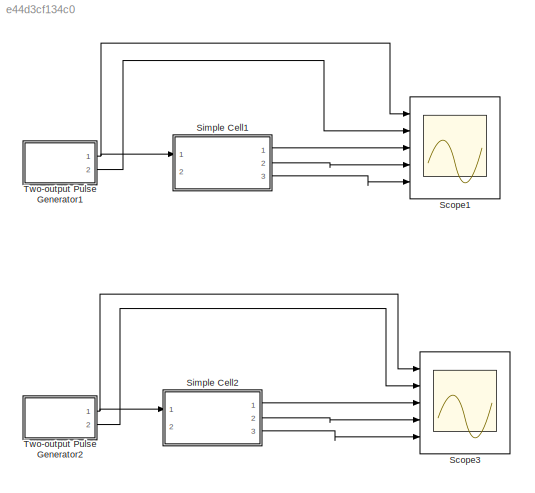
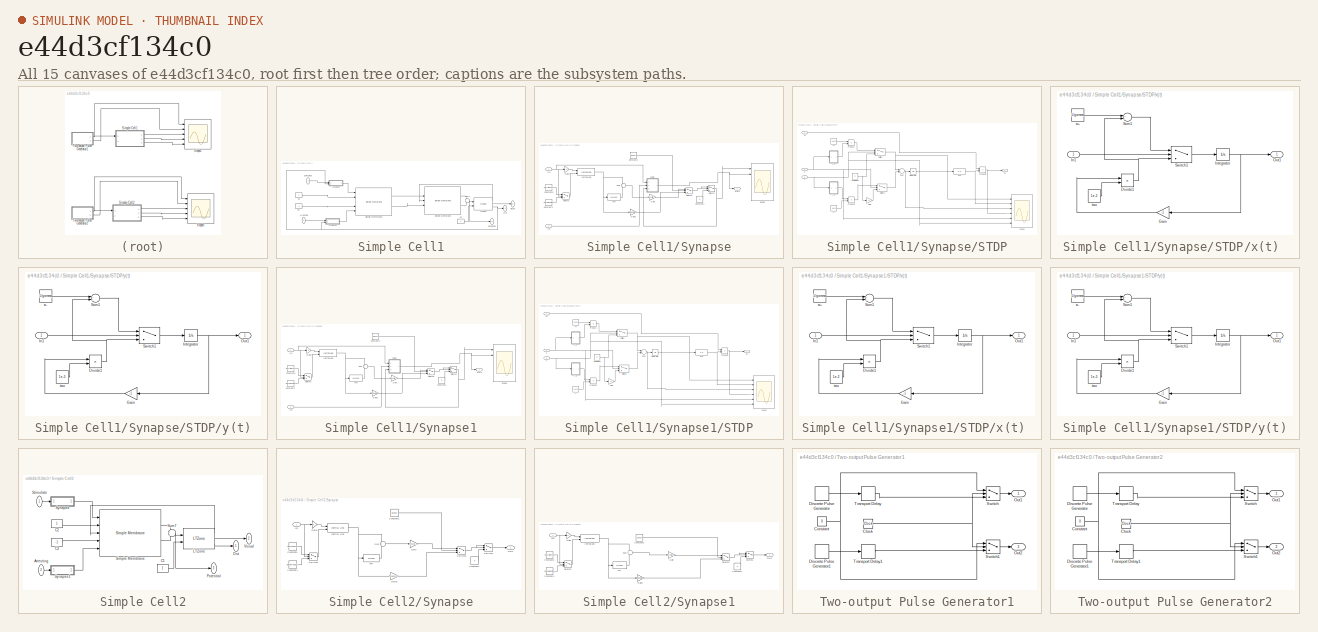
[diagram: thumbnail index - all 15 canvases of the model, root first then tree order]
MODEL slx_e44d3cf134c0
KIND model
CONFIG AbsTol = auto
CONFIG EnableMultiTasking = on
CONFIG FixedStep = auto
CONFIG MaxStep = auto
CONFIG MinStep = auto
CONFIG RelTol = 1e-3
CONFIG SampleTimeConstraint = Unconstrained
CONFIG Solver = ode45
CONFIG SolverName = ode45
CONFIG StartTime = 0.0
CONFIG StopTime = 5
BLOCK [Scope] Scope1
  NumInputPorts = 5
  Ports = [5]
  ScopeSpecificationString = Simulink.scopes.TimeScopeBlockCfg('CurrentConfiguration', extmgr.ConfigurationSet(extmgr.Configuration('Core','General UI',true),extmgr.Configuration('Core','Source UI',true),extmgr.Configuration('Sources','WiredSimulink',true,'DataLoggingVariableName','ScopeData1','DataLoggingSaveFormat','StructureWithTime','DataLoggingMaxPoints','50000','DataLoggingLimitDataPoints',true,'DataLoggingDecimation','...<+4527ch>
BLOCK [Scope] Scope3
  NumInputPorts = 5
  Ports = [5]
  ScopeSpecificationString = Simulink.scopes.TimeScopeBlockCfg('CurrentConfiguration', extmgr.ConfigurationSet(extmgr.Configuration('Core','General UI',true),extmgr.Configuration('Core','Source UI',true),extmgr.Configuration('Sources','WiredSimulink',true,'DataLoggingVariableName','ScopeData2','DataLoggingSaveFormat','StructureWithTime','DataLoggingMaxPoints','50000','DataLoggingLimitDataPoints',true,'DataLoggingDecimation','...<+4550ch>
BLOCK [SubSystem] Simple Cell1
  AncestorBlock = NeuroModelerLibrary/Simple Cells/Simple Cell
  Ports = [2, 3]
  RequestExecContextInheritance = off
  Variant = off
BLOCK [Inport] Simple Cell1/Arresting
  IconDisplay = Port number
  Port = 2
BLOCK [Constant] Simple Cell1/C1
BLOCK [Constant] Simple Cell1/C2
BLOCK [Constant] Simple Cell1/C3
  Value = -1
BLOCK [Reference] Simple Cell1/LTZone  REF=NeuroModelerLibrary/Neuron Elements/LTZone
  Ports = [2, 3]
  SourceBlock = NeuroModelerLibrary/Neuron Elements/LTZone
  SourceType = Ion pump
BLOCK [Outport] Simple Cell1/Out
  IconDisplay = Port number
BLOCK [Outport] Simple Cell1/Potential
  IconDisplay = Port number
  Port = 3
BLOCK [Reference] Simple Cell1/Simple Membrane  REF=NeuroModelerLibrary/Neuron Elements/Simple Membrane
  Ports = [5, 2]
  SourceBlock = NeuroModelerLibrary/Neuron Elements/Simple Membrane
BLOCK [Reference] Simple Cell1/Simple Membrane1  REF=NeuroModelerLibrary/Neuron Elements/Simple Membrane
  Ports = [5, 2]
  SourceBlock = NeuroModelerLibrary/Neuron Elements/Simple Membrane
BLOCK [Inport] Simple Cell1/Stimulate
  IconDisplay = Port number
BLOCK [Sum] Simple Cell1/Sum7
  IconShape = round
  Ports = [2, 1]
BLOCK [SubSystem] Simple Cell1/Synapse
  AncestorBlock = NeuroModelerLibrary/Neuron Elements/Synapse
  Ports = [2, 1]
  RequestExecContextInheritance = off
  Variant = off
BLOCK [Constant] Simple Cell1/Synapse/Constant1
  Value = 0
BLOCK [Constant] Simple Cell1/Synapse/Constant2
  Value = UseKsi
BLOCK [Constant] Simple Cell1/Synapse/Constant4
  Value = DecompositionTC
BLOCK [Constant] Simple Cell1/Synapse/Constant5
  Value = SecretionTC
BLOCK [Fcn] Simple Cell1/Synapse/Fcn
  Expr = u*u*ksi
BLOCK [Gain] Simple Cell1/Synapse/Gain
  Gain = 4*ksi/gamma
BLOCK [Gain] Simple Cell1/Synapse/Gain1
BLOCK [Gain] Simple Cell1/Synapse/Gain2
  Gain = 1/gamma
BLOCK [Inport] Simple Cell1/Synapse/In1
  IconDisplay = Port number
BLOCK [Inport] Simple Cell1/Synapse/In2
  IconDisplay = Port number
  Port = 2
BLOCK [Reference] Simple Cell1/Synapse/Inertial Link  REF=NeuroModelerLibrary/Support/Inertial Link
  Ports = [2, 1]
  SourceBlock = NeuroModelerLibrary/Support/Inertial Link
  SourceType = SubSystem
BLOCK [Outport] Simple Cell1/Synapse/Out1
  IconDisplay = Port number
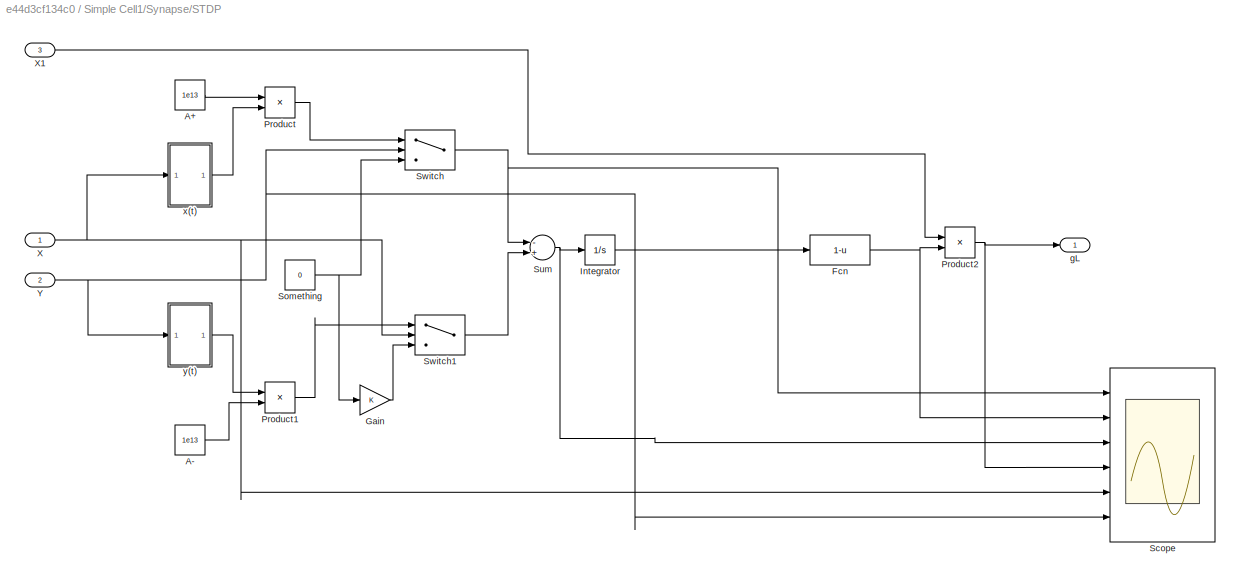
BLOCK [SubSystem] Simple Cell1/Synapse/STDP
  Ports = [3, 1]
  RequestExecContextInheritance = off
  Variant = off
BLOCK [Constant] Simple Cell1/Synapse/STDP/A+
  Value = 1e13
BLOCK [Constant] Simple Cell1/Synapse/STDP/A-
  Value = 1e13
BLOCK [Fcn] Simple Cell1/Synapse/STDP/Fcn
  Expr = 1-u
BLOCK [Gain] Simple Cell1/Synapse/STDP/Gain
  OutDataTypeStr = Inherit: Inherit via internal rule
  ParamDataTypeStr = Inherit: Inherit via internal rule
  SaturateOnIntegerOverflow = off
BLOCK [Integrator] Simple Cell1/Synapse/STDP/Integrator
  InitialCondition = 1/gamma
  Ports = [1, 1]
BLOCK [Product] Simple Cell1/Synapse/STDP/Product
  InputSameDT = off
  OutDataTypeStr = Inherit: Inherit via internal rule
  Ports = [2, 1]
  RndMeth = Floor
  SaturateOnIntegerOverflow = off
BLOCK [Product] Simple Cell1/Synapse/STDP/Product1
  InputSameDT = off
  OutDataTypeStr = Inherit: Inherit via internal rule
  Ports = [2, 1]
  RndMeth = Floor
  SaturateOnIntegerOverflow = off
BLOCK [Product] Simple Cell1/Synapse/STDP/Product2
  InputSameDT = off
  OutDataTypeStr = Inherit: Inherit via internal rule
  Ports = [2, 1]
  RndMeth = Floor
  SaturateOnIntegerOverflow = off
BLOCK [Scope] Simple Cell1/Synapse/STDP/Scope
  NumInputPorts = 6
  Ports = [6]
  ScopeSpecificationString = Simulink.scopes.TimeScopeBlockCfg('CurrentConfiguration', extmgr.ConfigurationSet(extmgr.Configuration('Core','General UI',true),extmgr.Configuration('Core','Source UI',true),extmgr.Configuration('Sources','WiredSimulink',true,'DataLoggingVariableName','ScopeData1'),extmgr.Configuration('Visuals','Time Domain',true,'SerializedDisplays',{struct('MinYLimReal','-8.12749','MaxYLimReal','73.14737','YLa...<+4981ch>
BLOCK [Constant] Simple Cell1/Synapse/STDP/Something
  Value = 0
BLOCK [Sum] Simple Cell1/Synapse/STDP/Sum
  InputSameDT = off
  Inputs = -+
  OutDataTypeStr = Inherit: Inherit via internal rule
  Ports = [2, 1]
  SaturateOnIntegerOverflow = off
BLOCK [Switch] Simple Cell1/Synapse/STDP/Switch
  Criteria = u2 > Threshold
  InputSameDT = off
  SaturateOnIntegerOverflow = off
  Threshold = 0.001
BLOCK [Switch] Simple Cell1/Synapse/STDP/Switch1
  Criteria = u2 > Threshold
  InputSameDT = off
  SaturateOnIntegerOverflow = off
  Threshold = 0.001
BLOCK [Inport] Simple Cell1/Synapse/STDP/X
  IconDisplay = Port number
BLOCK [Inport] Simple Cell1/Synapse/STDP/X1
  IconDisplay = Port number
  Port = 3
BLOCK [Inport] Simple Cell1/Synapse/STDP/Y
  IconDisplay = Port number
  Port = 2
BLOCK [Outport] Simple Cell1/Synapse/STDP/gL
  IconDisplay = Port number
BLOCK [SubSystem] Simple Cell1/Synapse/STDP/x(t) 
  Ports = [1, 1]
  RequestExecContextInheritance = off
  Variant = off
BLOCK [Product] Simple Cell1/Synapse/STDP/x(t) /Divide1
  InputSameDT = off
  Inputs = */
  OutDataTypeStr = Inherit: Inherit via internal rule
  Ports = [2, 1]
  RndMeth = Floor
  SaturateOnIntegerOverflow = off
BLOCK [Gain] Simple Cell1/Synapse/STDP/x(t) /Gain
  Gain = -1
  OutDataTypeStr = Inherit: Inherit via internal rule
  ParamDataTypeStr = Inherit: Inherit via internal rule
  SaturateOnIntegerOverflow = off
BLOCK [Inport] Simple Cell1/Synapse/STDP/x(t) /In1
  IconDisplay = Port number
BLOCK [Integrator] Simple Cell1/Synapse/STDP/x(t) /Integrator
  Ports = [1, 1]
BLOCK [Outport] Simple Cell1/Synapse/STDP/x(t) /Out1
  IconDisplay = Port number
BLOCK [Sum] Simple Cell1/Synapse/STDP/x(t) /Sum1
  InputSameDT = off
  OutDataTypeStr = Inherit: Inherit via internal rule
  Ports = [2, 1]
  SaturateOnIntegerOverflow = off
BLOCK [Switch] Simple Cell1/Synapse/STDP/x(t) /Switch1
  Criteria = u2 > Threshold
  InputSameDT = off
  SaturateOnIntegerOverflow = off
  Threshold = 0.001
BLOCK [Constant] Simple Cell1/Synapse/STDP/x(t) /a+
  Value = 1/gamma
BLOCK [Constant] Simple Cell1/Synapse/STDP/x(t) /tau
  Value = 1e-2
BLOCK [SubSystem] Simple Cell1/Synapse/STDP/y(t)
  Ports = [1, 1]
  RequestExecContextInheritance = off
  Variant = off
BLOCK [Product] Simple Cell1/Synapse/STDP/y(t)/Divide1
  InputSameDT = off
  Inputs = */
  OutDataTypeStr = Inherit: Inherit via internal rule
  Ports = [2, 1]
  RndMeth = Floor
  SaturateOnIntegerOverflow = off
BLOCK [Gain] Simple Cell1/Synapse/STDP/y(t)/Gain
  Gain = -1
  OutDataTypeStr = Inherit: Inherit via internal rule
  ParamDataTypeStr = Inherit: Inherit via internal rule
  SaturateOnIntegerOverflow = off
BLOCK [Inport] Simple Cell1/Synapse/STDP/y(t)/In1
  IconDisplay = Port number
BLOCK [Integrator] Simple Cell1/Synapse/STDP/y(t)/Integrator
  Ports = [1, 1]
BLOCK [Outport] Simple Cell1/Synapse/STDP/y(t)/Out1
  IconDisplay = Port number
BLOCK [Sum] Simple Cell1/Synapse/STDP/y(t)/Sum1
  InputSameDT = off
  OutDataTypeStr = Inherit: Inherit via internal rule
  Ports = [2, 1]
  SaturateOnIntegerOverflow = off
BLOCK [Switch] Simple Cell1/Synapse/STDP/y(t)/Switch1
  Criteria = u2 > Threshold
  InputSameDT = off
  SaturateOnIntegerOverflow = off
  Threshold = 0.001
BLOCK [Constant] Simple Cell1/Synapse/STDP/y(t)/a-
  Value = 1/gamma
BLOCK [Constant] Simple Cell1/Synapse/STDP/y(t)/tau
  Value = 1e-3
BLOCK [Scope] Simple Cell1/Synapse/Scope
  NumInputPorts = 6
  Ports = [6]
  ScopeSpecificationString = Simulink.scopes.TimeScopeBlockCfg('CurrentConfiguration', extmgr.ConfigurationSet(extmgr.Configuration('Core','General UI',true),extmgr.Configuration('Core','Source UI',true),extmgr.Configuration('Sources','WiredSimulink',true,'DataLoggingVariableName','ScopeData3'),extmgr.Configuration('Visuals','Time Domain',true,'SerializedDisplays',{struct('MinYLimReal','-0.000000001','MaxYLimReal','0.00000001...<+5032ch>
BLOCK [Sum] Simple Cell1/Synapse/Sum
  IconShape = round
  InputSameDT = off
  Inputs = +-
  OutDataTypeStr = Inherit: Inherit via internal rule
  Ports = [2, 1]
BLOCK [Switch] Simple Cell1/Synapse/Switch1
  InputSameDT = off
  SaturateOnIntegerOverflow = off
BLOCK [Switch] Simple Cell1/Synapse/Switch2
  InputSameDT = off
  SaturateOnIntegerOverflow = off
  Threshold = 1
BLOCK [Switch] Simple Cell1/Synapse/Switch3
  InputSameDT = off
  SaturateOnIntegerOverflow = off
  Threshold = 1
BLOCK [SubSystem] Simple Cell1/Synapse1
  AncestorBlock = NeuroModelerLibrary/Neuron Elements/Synapse
  Ports = [2, 1]
  RequestExecContextInheritance = off
  Variant = off
BLOCK [Constant] Simple Cell1/Synapse1/Constant1
  Value = 0
BLOCK [Constant] Simple Cell1/Synapse1/Constant2
  Value = UseKsi
BLOCK [Constant] Simple Cell1/Synapse1/Constant4
  Value = DecompositionTC
BLOCK [Constant] Simple Cell1/Synapse1/Constant5
  Value = SecretionTC
BLOCK [Fcn] Simple Cell1/Synapse1/Fcn
  Expr = u*u*ksi
BLOCK [Gain] Simple Cell1/Synapse1/Gain
  Gain = 4*ksi/gamma
BLOCK [Gain] Simple Cell1/Synapse1/Gain1
BLOCK [Gain] Simple Cell1/Synapse1/Gain2
  Gain = 1/gamma
BLOCK [Inport] Simple Cell1/Synapse1/In1
  IconDisplay = Port number
BLOCK [Inport] Simple Cell1/Synapse1/In2
  IconDisplay = Port number
  Port = 2
BLOCK [Reference] Simple Cell1/Synapse1/Inertial Link  REF=NeuroModelerLibrary/Support/Inertial Link
  Ports = [2, 1]
  SourceBlock = NeuroModelerLibrary/Support/Inertial Link
  SourceType = SubSystem
BLOCK [Outport] Simple Cell1/Synapse1/Out1
  IconDisplay = Port number
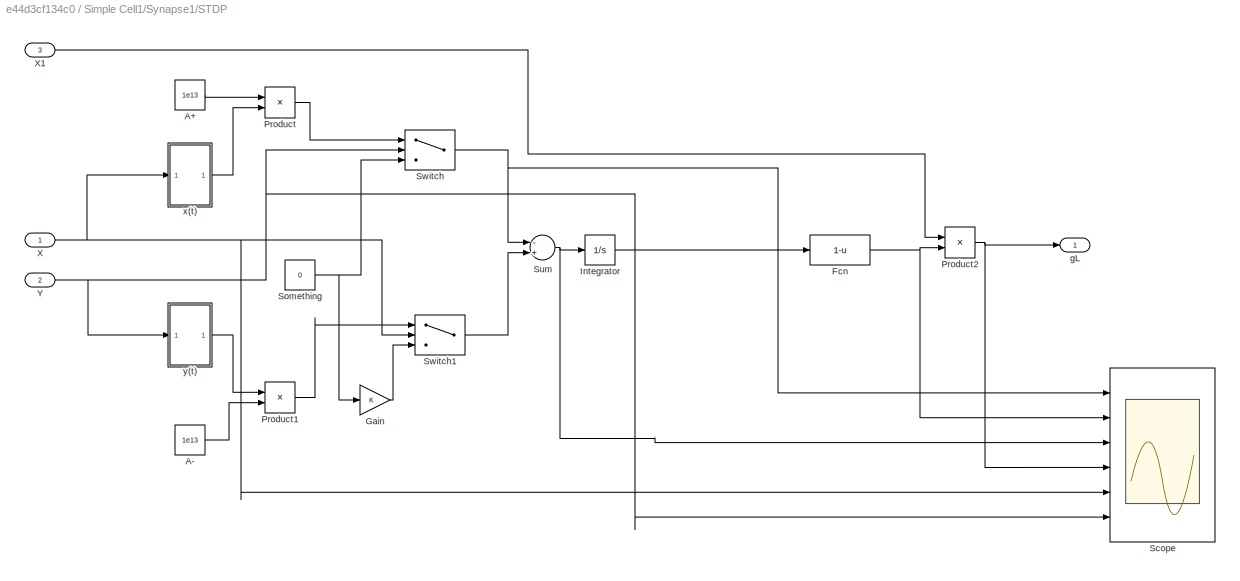
BLOCK [SubSystem] Simple Cell1/Synapse1/STDP
  Ports = [3, 1]
  RequestExecContextInheritance = off
  Variant = off
BLOCK [Constant] Simple Cell1/Synapse1/STDP/A+
  Value = 1e13
BLOCK [Constant] Simple Cell1/Synapse1/STDP/A-
  Value = 1e13
BLOCK [Fcn] Simple Cell1/Synapse1/STDP/Fcn
  Expr = 1-u
BLOCK [Gain] Simple Cell1/Synapse1/STDP/Gain
  OutDataTypeStr = Inherit: Inherit via internal rule
  ParamDataTypeStr = Inherit: Inherit via internal rule
  SaturateOnIntegerOverflow = off
BLOCK [Integrator] Simple Cell1/Synapse1/STDP/Integrator
  InitialCondition = 1/gamma
  Ports = [1, 1]
BLOCK [Product] Simple Cell1/Synapse1/STDP/Product
  InputSameDT = off
  OutDataTypeStr = Inherit: Inherit via internal rule
  Ports = [2, 1]
  RndMeth = Floor
  SaturateOnIntegerOverflow = off
BLOCK [Product] Simple Cell1/Synapse1/STDP/Product1
  InputSameDT = off
  OutDataTypeStr = Inherit: Inherit via internal rule
  Ports = [2, 1]
  RndMeth = Floor
  SaturateOnIntegerOverflow = off
BLOCK [Product] Simple Cell1/Synapse1/STDP/Product2
  InputSameDT = off
  OutDataTypeStr = Inherit: Inherit via internal rule
  Ports = [2, 1]
  RndMeth = Floor
  SaturateOnIntegerOverflow = off
BLOCK [Scope] Simple Cell1/Synapse1/STDP/Scope
  NumInputPorts = 6
  Ports = [6]
  ScopeSpecificationString = Simulink.scopes.TimeScopeBlockCfg('CurrentConfiguration', extmgr.ConfigurationSet(extmgr.Configuration('Core','General UI',true),extmgr.Configuration('Core','Source UI',true),extmgr.Configuration('Sources','WiredSimulink',true,'DataLoggingVariableName','ScopeData1'),extmgr.Configuration('Visuals','Time Domain',true,'SerializedDisplays',{struct('MinYLimReal','-8.12749','MaxYLimReal','73.14737','YLa...<+4981ch>
BLOCK [Constant] Simple Cell1/Synapse1/STDP/Something
  Value = 0
BLOCK [Sum] Simple Cell1/Synapse1/STDP/Sum
  InputSameDT = off
  Inputs = -+
  OutDataTypeStr = Inherit: Inherit via internal rule
  Ports = [2, 1]
  SaturateOnIntegerOverflow = off
BLOCK [Switch] Simple Cell1/Synapse1/STDP/Switch
  Criteria = u2 > Threshold
  InputSameDT = off
  SaturateOnIntegerOverflow = off
  Threshold = 0.001
BLOCK [Switch] Simple Cell1/Synapse1/STDP/Switch1
  Criteria = u2 > Threshold
  InputSameDT = off
  SaturateOnIntegerOverflow = off
  Threshold = 0.001
BLOCK [Inport] Simple Cell1/Synapse1/STDP/X
  IconDisplay = Port number
BLOCK [Inport] Simple Cell1/Synapse1/STDP/X1
  IconDisplay = Port number
  Port = 3
BLOCK [Inport] Simple Cell1/Synapse1/STDP/Y
  IconDisplay = Port number
  Port = 2
BLOCK [Outport] Simple Cell1/Synapse1/STDP/gL
  IconDisplay = Port number
BLOCK [SubSystem] Simple Cell1/Synapse1/STDP/x(t) 
  Ports = [1, 1]
  RequestExecContextInheritance = off
  Variant = off
BLOCK [Product] Simple Cell1/Synapse1/STDP/x(t) /Divide1
  InputSameDT = off
  Inputs = */
  OutDataTypeStr = Inherit: Inherit via internal rule
  Ports = [2, 1]
  RndMeth = Floor
  SaturateOnIntegerOverflow = off
BLOCK [Gain] Simple Cell1/Synapse1/STDP/x(t) /Gain
  Gain = -1
  OutDataTypeStr = Inherit: Inherit via internal rule
  ParamDataTypeStr = Inherit: Inherit via internal rule
  SaturateOnIntegerOverflow = off
BLOCK [Inport] Simple Cell1/Synapse1/STDP/x(t) /In1
  IconDisplay = Port number
BLOCK [Integrator] Simple Cell1/Synapse1/STDP/x(t) /Integrator
  Ports = [1, 1]
BLOCK [Outport] Simple Cell1/Synapse1/STDP/x(t) /Out1
  IconDisplay = Port number
BLOCK [Sum] Simple Cell1/Synapse1/STDP/x(t) /Sum1
  InputSameDT = off
  OutDataTypeStr = Inherit: Inherit via internal rule
  Ports = [2, 1]
  SaturateOnIntegerOverflow = off
BLOCK [Switch] Simple Cell1/Synapse1/STDP/x(t) /Switch1
  Criteria = u2 > Threshold
  InputSameDT = off
  SaturateOnIntegerOverflow = off
  Threshold = 0.001
BLOCK [Constant] Simple Cell1/Synapse1/STDP/x(t) /a+
  Value = 1/gamma
BLOCK [Constant] Simple Cell1/Synapse1/STDP/x(t) /tau
  Value = 1e-2
BLOCK [SubSystem] Simple Cell1/Synapse1/STDP/y(t)
  Ports = [1, 1]
  RequestExecContextInheritance = off
  Variant = off
BLOCK [Product] Simple Cell1/Synapse1/STDP/y(t)/Divide1
  InputSameDT = off
  Inputs = */
  OutDataTypeStr = Inherit: Inherit via internal rule
  Ports = [2, 1]
  RndMeth = Floor
  SaturateOnIntegerOverflow = off
BLOCK [Gain] Simple Cell1/Synapse1/STDP/y(t)/Gain
  Gain = -1
  OutDataTypeStr = Inherit: Inherit via internal rule
  ParamDataTypeStr = Inherit: Inherit via internal rule
  SaturateOnIntegerOverflow = off
BLOCK [Inport] Simple Cell1/Synapse1/STDP/y(t)/In1
  IconDisplay = Port number
BLOCK [Integrator] Simple Cell1/Synapse1/STDP/y(t)/Integrator
  Ports = [1, 1]
BLOCK [Outport] Simple Cell1/Synapse1/STDP/y(t)/Out1
  IconDisplay = Port number
BLOCK [Sum] Simple Cell1/Synapse1/STDP/y(t)/Sum1
  InputSameDT = off
  OutDataTypeStr = Inherit: Inherit via internal rule
  Ports = [2, 1]
  SaturateOnIntegerOverflow = off
BLOCK [Switch] Simple Cell1/Synapse1/STDP/y(t)/Switch1
  Criteria = u2 > Threshold
  InputSameDT = off
  SaturateOnIntegerOverflow = off
  Threshold = 0.001
BLOCK [Constant] Simple Cell1/Synapse1/STDP/y(t)/a-
  Value = 1/gamma
BLOCK [Constant] Simple Cell1/Synapse1/STDP/y(t)/tau
  Value = 1e-3
BLOCK [Scope] Simple Cell1/Synapse1/Scope
  NumInputPorts = 6
  Ports = [6]
  ScopeSpecificationString = Simulink.scopes.TimeScopeBlockCfg('CurrentConfiguration', extmgr.ConfigurationSet(extmgr.Configuration('Core','General UI',true),extmgr.Configuration('Core','Source UI',true),extmgr.Configuration('Sources','WiredSimulink',true,'DataLoggingVariableName','ScopeData3'),extmgr.Configuration('Visuals','Time Domain',true,'SerializedDisplays',{struct('MinYLimReal','-0.000000001','MaxYLimReal','0.00000001...<+5032ch>
BLOCK [Sum] Simple Cell1/Synapse1/Sum
  IconShape = round
  InputSameDT = off
  Inputs = +-
  OutDataTypeStr = Inherit: Inherit via internal rule
  Ports = [2, 1]
BLOCK [Switch] Simple Cell1/Synapse1/Switch1
  InputSameDT = off
  SaturateOnIntegerOverflow = off
BLOCK [Switch] Simple Cell1/Synapse1/Switch2
  InputSameDT = off
  SaturateOnIntegerOverflow = off
  Threshold = 1
BLOCK [Switch] Simple Cell1/Synapse1/Switch3
  InputSameDT = off
  SaturateOnIntegerOverflow = off
  Threshold = 1
BLOCK [Outport] Simple Cell1/Visual
  IconDisplay = Port number
  Port = 2
BLOCK [SubSystem] Simple Cell2
  AncestorBlock = NeuroModelerLibrary/Simple Cells/Simple Cell
  Ports = [2, 3]
  RequestExecContextInheritance = off
  Variant = off
BLOCK [Inport] Simple Cell2/Arresting
  IconDisplay = Port number
  Port = 2
BLOCK [Constant] Simple Cell2/C1
BLOCK [Constant] Simple Cell2/C2
BLOCK [Constant] Simple Cell2/C3
  Value = -1
BLOCK [Reference] Simple Cell2/LTZone  REF=NeuroModelerLibrary/Neuron Elements/LTZone
  Ports = [2, 3]
  SourceBlock = NeuroModelerLibrary/Neuron Elements/LTZone
  SourceType = Ion pump
BLOCK [Outport] Simple Cell2/Out
  IconDisplay = Port number
BLOCK [Outport] Simple Cell2/Potential
  IconDisplay = Port number
  Port = 3
BLOCK [Reference] Simple Cell2/Simple Membrane  REF=NeuroModelerLibrary/Neuron Elements/Simple Membrane
  Ports = [5, 2]
  SourceBlock = NeuroModelerLibrary/Neuron Elements/Simple Membrane
BLOCK [Inport] Simple Cell2/Stimulate
  IconDisplay = Port number
BLOCK [Sum] Simple Cell2/Sum7
  IconShape = round
  Ports = [2, 1]
BLOCK [SubSystem] Simple Cell2/Synapse
  AncestorBlock = NeuroModelerLibrary/Neuron Elements/Synapse
  Ports = [1, 1]
  RequestExecContextInheritance = off
  Variant = off
BLOCK [Constant] Simple Cell2/Synapse/Constant1
  Value = 0
BLOCK [Constant] Simple Cell2/Synapse/Constant2
  Value = UseKsi
BLOCK [Constant] Simple Cell2/Synapse/Constant4
  Value = DecompositionTC
BLOCK [Constant] Simple Cell2/Synapse/Constant5
  Value = SecretionTC
BLOCK [Fcn] Simple Cell2/Synapse/Fcn
  Expr = u*u*ksi
BLOCK [Gain] Simple Cell2/Synapse/Gain
  Gain = 4*ksi/gamma
BLOCK [Gain] Simple Cell2/Synapse/Gain1
BLOCK [Gain] Simple Cell2/Synapse/Gain2
  Gain = 1/gamma
BLOCK [Inport] Simple Cell2/Synapse/In1
  IconDisplay = Port number
BLOCK [Reference] Simple Cell2/Synapse/Inertial Link  REF=NeuroModelerLibrary/Support/Inertial Link
  Ports = [2, 1]
  SourceBlock = NeuroModelerLibrary/Support/Inertial Link
  SourceType = SubSystem
BLOCK [Outport] Simple Cell2/Synapse/Out1
  IconDisplay = Port number
BLOCK [Sum] Simple Cell2/Synapse/Sum
  IconShape = round
  InputSameDT = off
  Inputs = +-
  OutDataTypeStr = Inherit: Inherit via internal rule
  Ports = [2, 1]
BLOCK [Switch] Simple Cell2/Synapse/Switch1
  InputSameDT = off
  SaturateOnIntegerOverflow = off
BLOCK [Switch] Simple Cell2/Synapse/Switch2
  InputSameDT = off
  SaturateOnIntegerOverflow = off
  Threshold = 1
BLOCK [Switch] Simple Cell2/Synapse/Switch3
  InputSameDT = off
  SaturateOnIntegerOverflow = off
  Threshold = 1
BLOCK [SubSystem] Simple Cell2/Synapse1
  AncestorBlock = NeuroModelerLibrary/Neuron Elements/Synapse
  Ports = [1, 1]
  RequestExecContextInheritance = off
  Variant = off
BLOCK [Constant] Simple Cell2/Synapse1/Constant1
  Value = 0
BLOCK [Constant] Simple Cell2/Synapse1/Constant2
  Value = UseKsi
BLOCK [Constant] Simple Cell2/Synapse1/Constant4
  Value = DecompositionTC
BLOCK [Constant] Simple Cell2/Synapse1/Constant5
  Value = SecretionTC
BLOCK [Fcn] Simple Cell2/Synapse1/Fcn
  Expr = u*u*ksi
BLOCK [Gain] Simple Cell2/Synapse1/Gain
  Gain = 4*ksi/gamma
BLOCK [Gain] Simple Cell2/Synapse1/Gain1
BLOCK [Gain] Simple Cell2/Synapse1/Gain2
  Gain = 1/gamma
BLOCK [Inport] Simple Cell2/Synapse1/In1
  IconDisplay = Port number
BLOCK [Reference] Simple Cell2/Synapse1/Inertial Link  REF=NeuroModelerLibrary/Support/Inertial Link
  Ports = [2, 1]
  SourceBlock = NeuroModelerLibrary/Support/Inertial Link
  SourceType = SubSystem
BLOCK [Outport] Simple Cell2/Synapse1/Out1
  IconDisplay = Port number
BLOCK [Sum] Simple Cell2/Synapse1/Sum
  IconShape = round
  InputSameDT = off
  Inputs = +-
  OutDataTypeStr = Inherit: Inherit via internal rule
  Ports = [2, 1]
BLOCK [Switch] Simple Cell2/Synapse1/Switch1
  InputSameDT = off
  SaturateOnIntegerOverflow = off
BLOCK [Switch] Simple Cell2/Synapse1/Switch2
  InputSameDT = off
  SaturateOnIntegerOverflow = off
  Threshold = 1
BLOCK [Switch] Simple Cell2/Synapse1/Switch3
  InputSameDT = off
  SaturateOnIntegerOverflow = off
  Threshold = 1
BLOCK [Outport] Simple Cell2/Visual
  IconDisplay = Port number
  Port = 2
BLOCK [SubSystem] Two-output Pulse Generator1
  Ports = [0, 2]
  RequestExecContextInheritance = off
  Variant = off
BLOCK [Clock] Two-output Pulse Generator1/Clock
BLOCK [Constant] Two-output Pulse Generator1/Constant
  Value = 0
BLOCK [DiscretePulseGenerator] Two-output Pulse Generator1/Discrete Pulse Generator
  Amplitude = A
  Period = P1
  Ports = [0, 1]
  PulseWidth = PW
  SampleTime = ST
BLOCK [DiscretePulseGenerator] Two-output Pulse Generator1/Discrete Pulse Generator1
  Amplitude = A
  Period = P2
  Ports = [0, 1]
  PulseWidth = PW
  SampleTime = ST
BLOCK [Outport] Two-output Pulse Generator1/Out1
  IconDisplay = Port number
  InitialOutput = 0
BLOCK [Outport] Two-output Pulse Generator1/Out2
  IconDisplay = Port number
  InitialOutput = 0
  Port = 2
BLOCK [Switch] Two-output Pulse Generator1/Switch
  Threshold = OOff1
BLOCK [Switch] Two-output Pulse Generator1/Switch1
  Threshold = OOff2
BLOCK [TransportDelay] Two-output Pulse Generator1/Transport Delay
  DelayTime = OOn1
  Ports = [1, 1]
BLOCK [TransportDelay] Two-output Pulse Generator1/Transport Delay1
  DelayTime = OOn2
  Ports = [1, 1]
BLOCK [SubSystem] Two-output Pulse Generator2
  Ports = [0, 2]
  RequestExecContextInheritance = off
  Variant = off
BLOCK [Clock] Two-output Pulse Generator2/Clock
BLOCK [Constant] Two-output Pulse Generator2/Constant
  Value = 0
BLOCK [DiscretePulseGenerator] Two-output Pulse Generator2/Discrete Pulse Generator
  Amplitude = A
  Period = P1
  Ports = [0, 1]
  PulseWidth = PW
  SampleTime = ST
BLOCK [DiscretePulseGenerator] Two-output Pulse Generator2/Discrete Pulse Generator1
  Amplitude = A
  Period = P2
  Ports = [0, 1]
  PulseWidth = PW
  SampleTime = ST
BLOCK [Outport] Two-output Pulse Generator2/Out1
  IconDisplay = Port number
  InitialOutput = 0
BLOCK [Outport] Two-output Pulse Generator2/Out2
  IconDisplay = Port number
  InitialOutput = 0
  Port = 2
BLOCK [Switch] Two-output Pulse Generator2/Switch
  Threshold = OOff1
BLOCK [Switch] Two-output Pulse Generator2/Switch1
  Threshold = OOff2
BLOCK [TransportDelay] Two-output Pulse Generator2/Transport Delay
  DelayTime = OOn1
  Ports = [1, 1]
BLOCK [TransportDelay] Two-output Pulse Generator2/Transport Delay1
  DelayTime = OOn2
  Ports = [1, 1]
LINE Simple Cell1:1 -> Scope1:3
LINE Simple Cell1:2 -> Scope1:4
LINE Simple Cell1:3 -> Scope1:5
LINE Simple Cell2:1 -> Scope3:3
LINE Simple Cell2:2 -> Scope3:4
LINE Simple Cell2:3 -> Scope3:5
NET Two-output Pulse Generator1/Clock:1 -> Two-output Pulse Generator1/Switch1:2, Two-output Pulse Generator1/Switch:2
NET Two-output Pulse Generator1/Constant:1 -> Two-output Pulse Generator1/Switch1:1, Two-output Pulse Generator1/Switch:1
LINE Two-output Pulse Generator1/Discrete Pulse Generator1:1 -> Two-output Pulse Generator1/Transport Delay1:1
LINE Two-output Pulse Generator1/Discrete Pulse Generator:1 -> Two-output Pulse Generator1/Transport Delay:1
LINE Two-output Pulse Generator1/Switch1:1 -> Two-output Pulse Generator1/Out2:1
LINE Two-output Pulse Generator1/Switch:1 -> Two-output Pulse Generator1/Out1:1
LINE Two-output Pulse Generator1/Transport Delay1:1 -> Two-output Pulse Generator1/Switch1:3
LINE Two-output Pulse Generator1/Transport Delay:1 -> Two-output Pulse Generator1/Switch:3
NET Two-output Pulse Generator1:1 -> Scope1:1, Simple Cell1:1
LINE Two-output Pulse Generator1:2 -> Scope1:2
NET Two-output Pulse Generator2/Clock:1 -> Two-output Pulse Generator2/Switch1:2, Two-output Pulse Generator2/Switch:2
NET Two-output Pulse Generator2/Constant:1 -> Two-output Pulse Generator2/Switch1:1, Two-output Pulse Generator2/Switch:1
LINE Two-output Pulse Generator2/Discrete Pulse Generator1:1 -> Two-output Pulse Generator2/Transport Delay1:1
LINE Two-output Pulse Generator2/Discrete Pulse Generator:1 -> Two-output Pulse Generator2/Transport Delay:1
LINE Two-output Pulse Generator2/Switch1:1 -> Two-output Pulse Generator2/Out2:1
LINE Two-output Pulse Generator2/Switch:1 -> Two-output Pulse Generator2/Out1:1
LINE Two-output Pulse Generator2/Transport Delay1:1 -> Two-output Pulse Generator2/Switch1:3
LINE Two-output Pulse Generator2/Transport Delay:1 -> Two-output Pulse Generator2/Switch:3
NET Two-output Pulse Generator2:1 -> Scope3:1, Simple Cell2:1
LINE Two-output Pulse Generator2:2 -> Scope3:2
note: NET lines group one-source signal fan-out (src -> all destinations, sorted); 1:1 wires keep LINE
